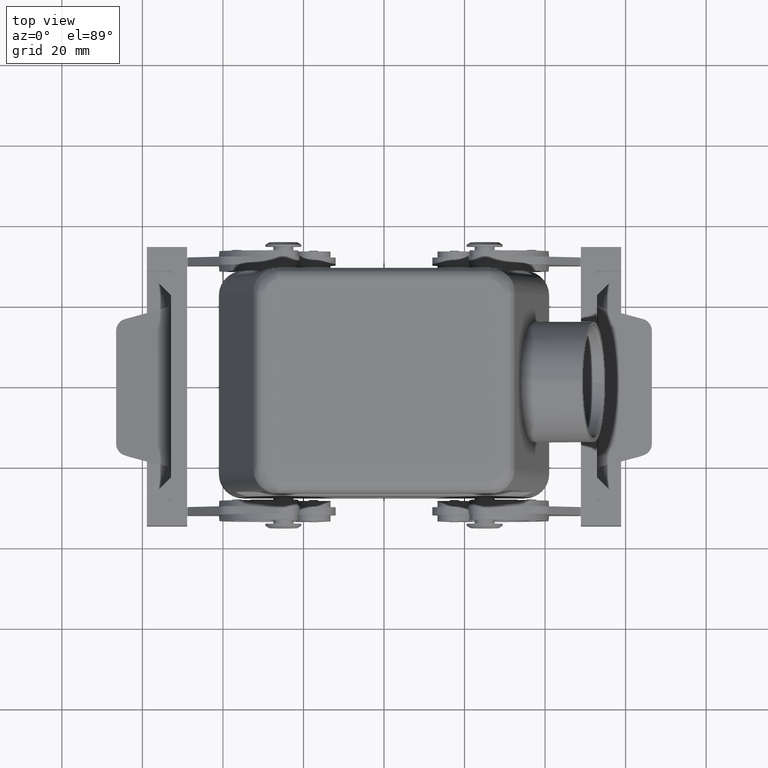
[diagram: clean part render]
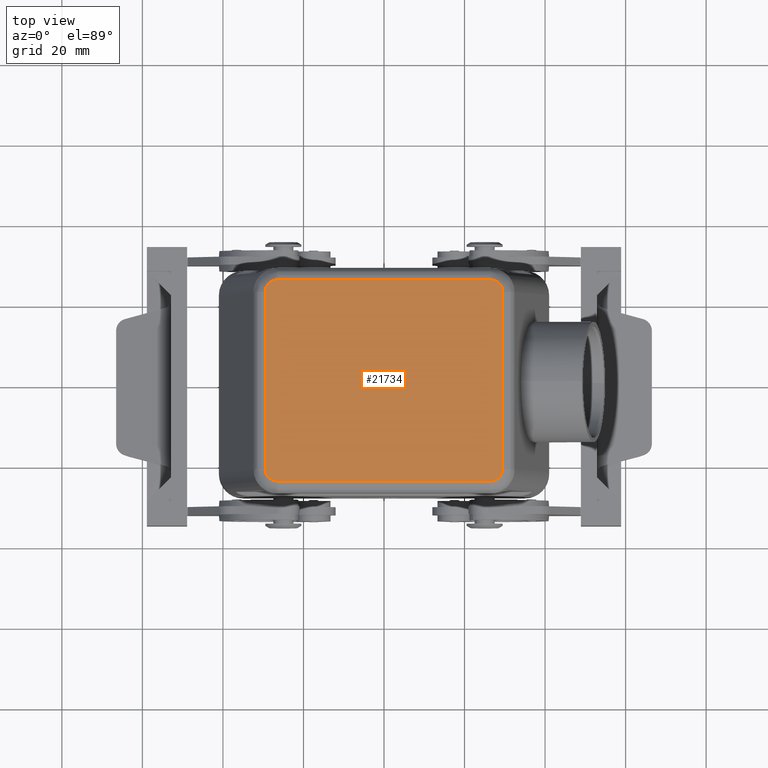
[diagram: same view with one face highlighted and labeled with its STEP entity id]
A machine part, top view. The second image highlights one B-rep face of the part: STEP entity #21734.
In plain terms, the highlighted planar face has unit normal (0, 0, 1).
Its self-contained STEP definition (entity closure, byte-faithful):
#4292=CARTESIAN_POINT('',(29.519960992168834,22.000000000000007,75.0));
#4293=VERTEX_POINT('',#4292);
#4301=CARTESIAN_POINT('',(29.519960992168834,-21.999999999999996,75.0));
#4302=VERTEX_POINT('',#4301);
#4303=CARTESIAN_POINT('',(29.519960992168834,22.000000000000007,75.0));
#4304=DIRECTION('',(0.0,-1.0,0.0));
#4305=VECTOR('',#4304,44.0);
#4306=LINE('',#4303,#4305);
#4307=EDGE_CURVE('',#4293,#4302,#4306,.T.);
#21542=CARTESIAN_POINT('',(-26.465453899231292,25.000000000000007,75.0));
#21543=VERTEX_POINT('',#21542);
#21561=CARTESIAN_POINT('',(-29.519960992168841,22.000000000000007,75.0));
#21562=VERTEX_POINT('',#21561);
#21570=CARTESIAN_POINT('',(-26.465453899231292,22.000000000000007,75.0));
#21571=DIRECTION('',(0.0,0.0,-1.0));
#21572=DIRECTION('',(-1.0,0.0,0.0));
#21573=AXIS2_PLACEMENT_3D('',#21570,#21571,#21572);
#21574=ELLIPSE('',#21573,3.054507092937550,3.000000000000001);
#21575=EDGE_CURVE('',#21562,#21543,#21574,.T.);
#21667=CARTESIAN_POINT('',(26.465453899231296,25.000000000000007,75.0));
#21668=VERTEX_POINT('',#21667);
#21669=CARTESIAN_POINT('',(-26.465453899231292,25.000000000000007,75.0));
#21670=DIRECTION('',(1.0,0.0,0.0));
#21671=VECTOR('',#21670,52.930907798462584);
#21672=LINE('',#21669,#21671);
#21673=EDGE_CURVE('',#21543,#21668,#21672,.T.);
#21685=CARTESIAN_POINT('',(32.0,0.0,75.0));
#21686=DIRECTION('',(0.0,0.0,1.0));
#21687=DIRECTION('',(1.0,0.0,0.0));
#21688=AXIS2_PLACEMENT_3D('',#21685,#21686,#21687);
#21689=PLANE('',#21688);
#21690=ORIENTED_EDGE('',*,*,#21575,.F.);
#21691=CARTESIAN_POINT('',(-29.519960992168841,-21.999999999999996,75.0));
#21692=VERTEX_POINT('',#21691);
#21693=CARTESIAN_POINT('',(-29.519960992168841,-21.999999999999996,75.0));
#21694=DIRECTION('',(0.0,1.0,0.0));
#21695=VECTOR('',#21694,44.0);
#21696=LINE('',#21693,#21695);
#21697=EDGE_CURVE('',#21692,#21562,#21696,.T.);
#21698=ORIENTED_EDGE('',*,*,#21697,.F.);
#21699=CARTESIAN_POINT('',(-26.465453899231285,-25.0,75.0));
#21700=VERTEX_POINT('',#21699);
#21701=CARTESIAN_POINT('',(-26.465453899231292,-21.999999999999996,75.0));
#21702=DIRECTION('',(0.0,0.0,-1.0));
#21703=DIRECTION('',(-1.0,0.0,0.0));
#21704=AXIS2_PLACEMENT_3D('',#21701,#21702,#21703);
#21705=ELLIPSE('',#21704,3.054507092937550,3.000000000000001);
#21706=EDGE_CURVE('',#21700,#21692,#21705,.T.);
#21707=ORIENTED_EDGE('',*,*,#21706,.F.);
#21708=CARTESIAN_POINT('',(26.465453899231292,-25.0,75.0));
#21709=VERTEX_POINT('',#21708);
#21710=CARTESIAN_POINT('',(26.465453899231292,-25.0,75.0));
#21711=DIRECTION('',(-1.0,0.0,0.0));
#21712=VECTOR('',#21711,52.930907798462577);
#21713=LINE('',#21710,#21712);
#21714=EDGE_CURVE('',#21709,#21700,#21713,.T.);
#21715=ORIENTED_EDGE('',*,*,#21714,.F.);
#21716=CARTESIAN_POINT('',(26.465453899231292,-21.999999999999996,75.0));
#21717=DIRECTION('',(0.0,0.0,-1.0));
#21718=DIRECTION('',(1.0,0.0,0.0));
#21719=AXIS2_PLACEMENT_3D('',#21716,#21717,#21718);
#21720=ELLIPSE('',#21719,3.054507092937549,3.0);
#21721=EDGE_CURVE('',#4302,#21709,#21720,.T.);
#21722=ORIENTED_EDGE('',*,*,#21721,.F.);
#21723=ORIENTED_EDGE('',*,*,#4307,.F.);
#21724=CARTESIAN_POINT('',(26.465453899231292,22.000000000000007,75.0));
#21725=DIRECTION('',(0.0,0.0,-1.0));
#21726=DIRECTION('',(1.0,0.0,0.0));
#21727=AXIS2_PLACEMENT_3D('',#21724,#21725,#21726);
#21728=ELLIPSE('',#21727,3.054507092937549,3.000000000000000);
#21729=EDGE_CURVE('',#21668,#4293,#21728,.T.);
#21730=ORIENTED_EDGE('',*,*,#21729,.F.);
#21731=ORIENTED_EDGE('',*,*,#21673,.F.);
#21732=EDGE_LOOP('',(#21690,#21698,#21707,#21715,#21722,#21723,#21730,#21731));
#21733=FACE_OUTER_BOUND('',#21732,.T.);
#21734=ADVANCED_FACE('',(#21733),#21689,.T.);